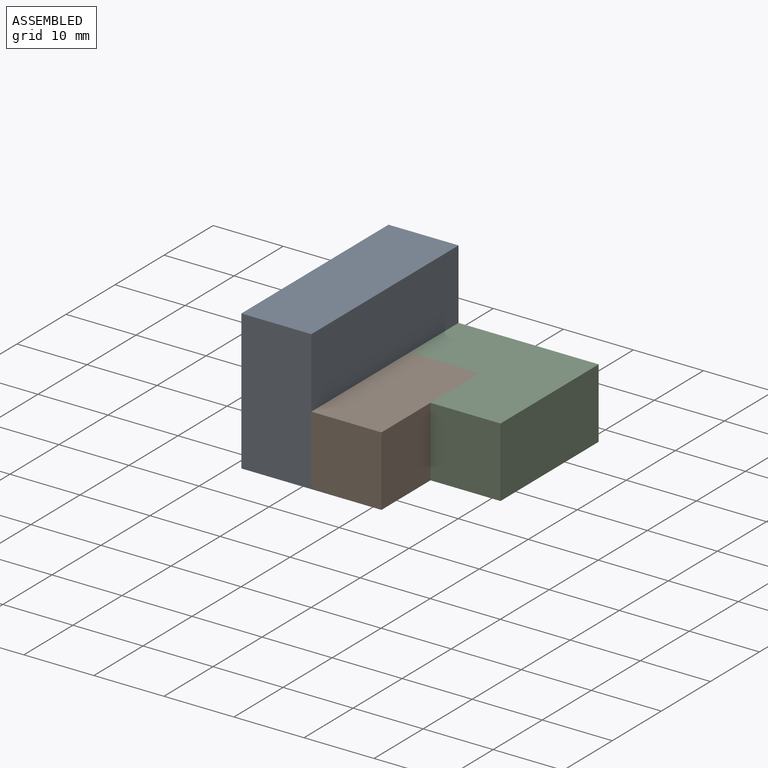
[diagram: assembled view]
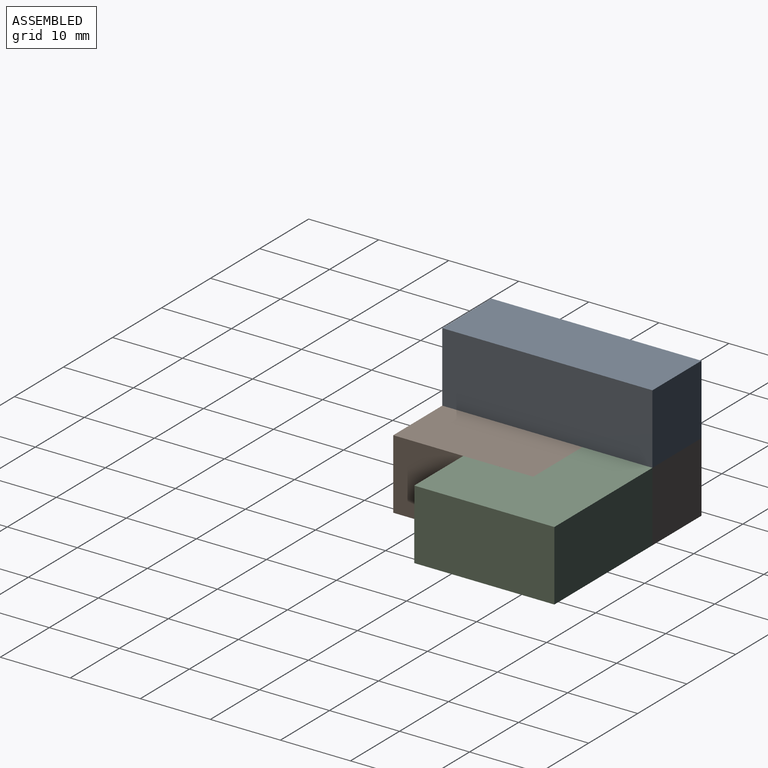
[diagram: assembled view, second angle]
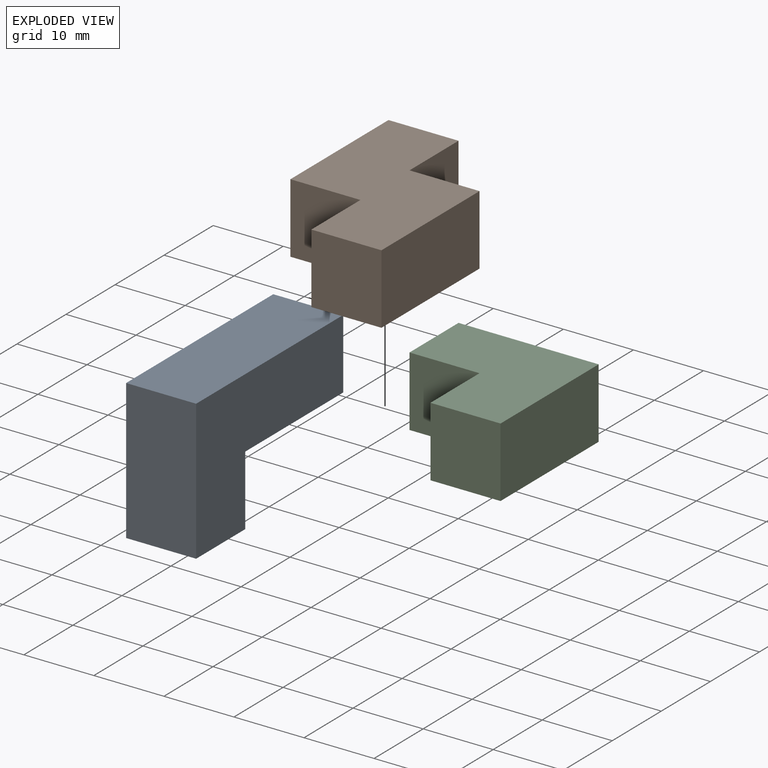
[diagram: exploded view]
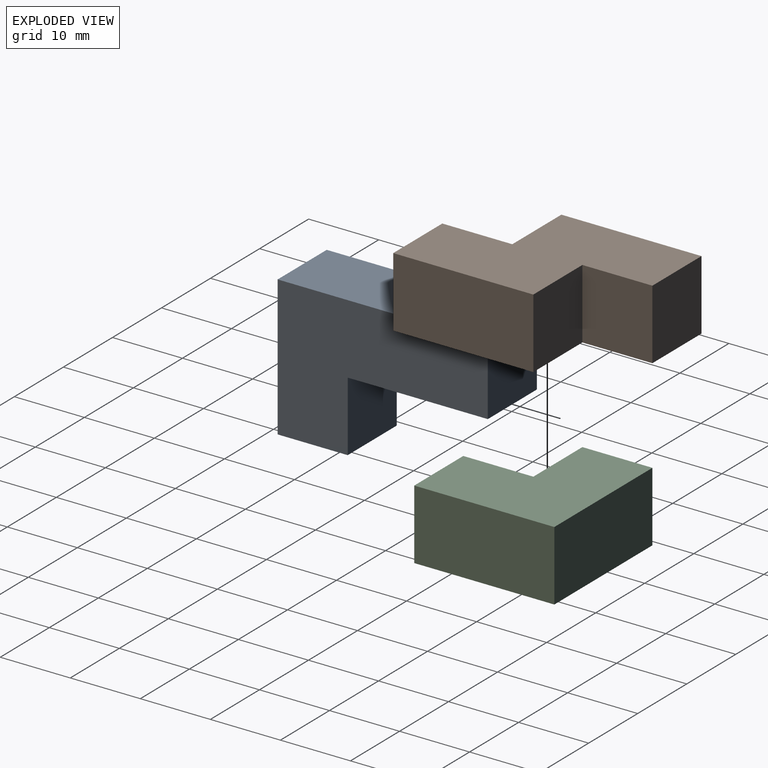
[diagram: exploded view, second angle]
ASSEMBLY  parts=3 mates=2
PART A: 8 faces, bbox 10x20x30 mm
  f0: plane 10x10mm, normal (0,0,1), area 100mm2, adj f2,f3,f4,f6
  f1: plane 20x10mm, normal (0,0,-1), area 200mm2, adj f2,f3,f4,f5
  f2: plane 10x10mm, normal (0,1,0), area 100mm2, adj f0,f1,f3,f4
  f3: plane 30x20mm, normal (1,0,0), area 400mm2, adj f0,f1,f2,f5,f6,f7
  f4: plane 30x20mm, normal (-1,0,0), area 400mm2, adj f0,f1,f2,f5,f6,f7
  f5: plane 30x10mm, normal (0,-1,0), area 300mm2, adj f1,f3,f4,f7
  f6: plane 20x10mm, normal (0,1,0), area 200mm2, adj f0,f3,f4,f7
  f7: plane 10x10mm, normal (0,0,1), area 100mm2, adj f3,f4,f5,f6
PART B: 10 faces, bbox 20x10x30 mm
  f0: plane 20x10mm, normal (1,0,0), area 200mm2, adj f1,f6,f7,f9
  f1: plane 10x10mm, normal (0,0,-1), area 100mm2, adj f0,f5,f6,f7
  f2: plane 10x10mm, normal (0,0,1), area 100mm2, adj f3,f6,f7,f8
  f3: plane 20x10mm, normal (-1,0,0), area 200mm2, adj f2,f4,f6,f7
  f4: plane 10x10mm, normal (0,0,-1), area 100mm2, adj f3,f5,f6,f7
  f5: plane 10x10mm, normal (-1,0,0), area 100mm2, adj f1,f4,f6,f7
  f6: plane 30x20mm, normal (0,-1,0), area 400mm2, adj f0,f1,f2,f3,f4,f5,f8,f9
  f7: plane 30x20mm, normal (0,1,0), area 400mm2, adj f0,f1,f2,f3,f4,f5,f8,f9
  f8: plane 10x10mm, normal (1,0,0), area 100mm2, adj f2,f6,f7,f9
  f9: plane 10x10mm, normal (0,0,1), area 100mm2, adj f0,f6,f7,f8
PART C: 8 faces, bbox 20x10x20 mm
  f0: plane 20x20mm, normal (0,-1,0), area 300mm2, adj f1,f3,f4,f5,f6,f7
  f1: plane 10x10mm, normal (0,0,-1), area 100mm2, adj f0,f2,f5,f6
  f2: plane 20x20mm, normal (0,1,0), area 300mm2, adj f1,f3,f4,f5,f6,f7
  f3: plane 20x10mm, normal (0,0,1), area 200mm2, adj f0,f2,f4,f5
  f4: plane 20x10mm, normal (1,0,0), area 200mm2, adj f0,f2,f3,f7
  f5: plane 10x10mm, normal (-1,0,0), area 100mm2, adj f0,f1,f2,f3
  f6: plane 10x10mm, normal (-1,0,0), area 100mm2, adj f0,f1,f2,f7
  f7: plane 10x10mm, normal (0,0,-1), area 100mm2, adj f0,f2,f4,f6
PLACE A rot(axis=(-1,0,0),90deg) t=(-7.87,-24.41,2.2)mm
PLACE B rot(axis=(-1,0,0),90deg) t=(-7.87,-24.41,2.2)mm fixed
PLACE C rot(axis=(-1,0,0),90deg) t=(-7.87,-24.41,2.2)mm
MATE fastened B.f4 <-> A.f0  axis (0,-1,0) through (-22.87,-14.41,7.2)mm
MATE fastened B.f8 <-> C.f5  axis (1,0,0) through (-17.87,0.59,7.2)mm
